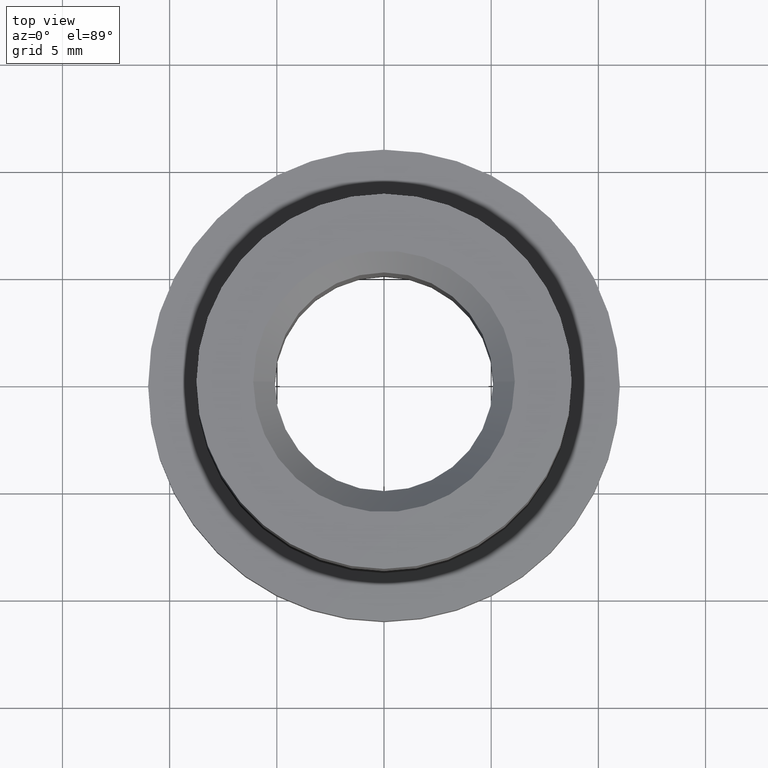
[diagram: clean part render]
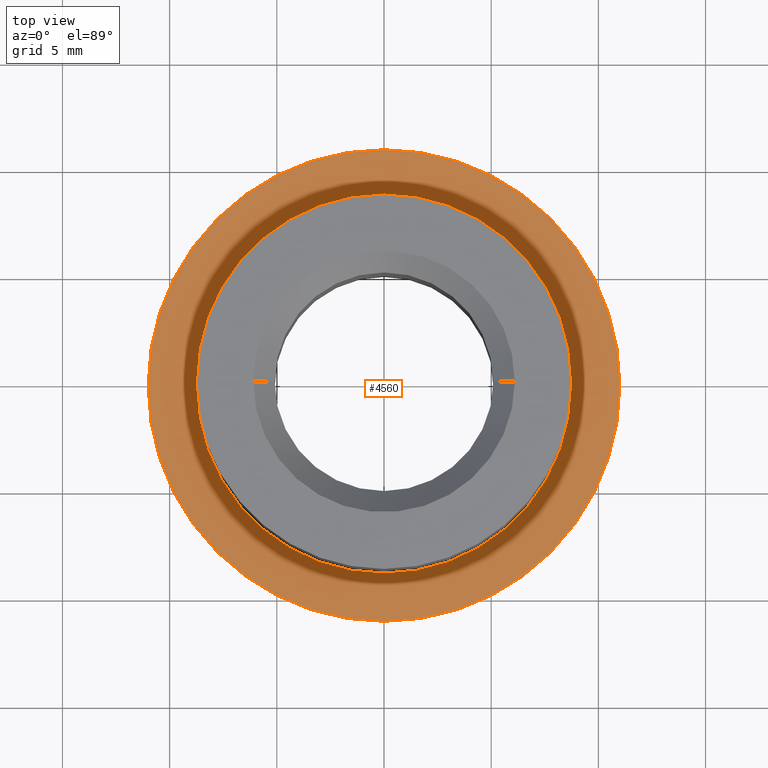
[diagram: same view with one face highlighted and labeled with its STEP entity id]
A machine part, top view. The second image highlights one B-rep face of the part: STEP entity #4560.
In plain terms, the highlighted planar face has unit normal (0, 0, -1).
Its self-contained STEP definition (entity closure, byte-faithful):
#906 = DIRECTION ( 'NONE',  ( 0.000000000000000000, 0.000000000000000000, -1.000000000000000000 ) ) ;
#979 = VERTEX_POINT ( 'NONE', #8013 ) ;
#1074 = DIRECTION ( 'NONE',  ( -0.000000000000000000, -0.000000000000000000, 1.000000000000000000 ) ) ;
#1916 = DIRECTION ( 'NONE',  ( -0.000000000000000000, -0.000000000000000000, 1.000000000000000000 ) ) ;
#2259 = CARTESIAN_POINT ( 'NONE',  ( -8.750000000000000000, 1.071565949253934124E-15, -4.000000000000000888 ) ) ;
#3133 = AXIS2_PLACEMENT_3D ( 'NONE', #7235, #1074, #12331 ) ;
#3796 = VERTEX_POINT ( 'NONE', #6628 ) ;
#3901 = EDGE_CURVE ( 'NONE', #979, #11785, #6807, .T. ) ;
#4403 = DIRECTION ( 'NONE',  ( -0.000000000000000000, -0.000000000000000000, 1.000000000000000000 ) ) ;
#4560 = ADVANCED_FACE ( 'NONE', ( #7610, #9060 ), #13271, .F. ) ;
#4762 = DIRECTION ( 'NONE',  ( 1.000000000000000000, 0.000000000000000000, 0.000000000000000000 ) ) ;
#5634 = ORIENTED_EDGE ( 'NONE', *, *, #10317, .F. ) ;
#5882 = CIRCLE ( 'NONE', #10283, 8.750000000000000000 ) ;
#5951 = CARTESIAN_POINT ( 'NONE',  ( 0.000000000000000000, 0.000000000000000000, -4.000000000000000888 ) ) ;
#6085 = DIRECTION ( 'NONE',  ( -1.000000000000000000, 0.000000000000000000, -0.000000000000000000 ) ) ;
#6100 = VERTEX_POINT ( 'NONE', #2259 ) ;
#6415 = CARTESIAN_POINT ( 'NONE',  ( 0.000000000000000000, 0.000000000000000000, -4.000000000000000888 ) ) ;
#6628 = CARTESIAN_POINT ( 'NONE',  ( 8.750000000000000000, 0.000000000000000000, -4.000000000000000888 ) ) ;
#6729 = CIRCLE ( 'NONE', #13180, 8.750000000000000000 ) ;
#6744 = ORIENTED_EDGE ( 'NONE', *, *, #8864, .T. ) ;
#6807 = CIRCLE ( 'NONE', #9390, 11.00000000000000000 ) ;
#7070 = CARTESIAN_POINT ( 'NONE',  ( 0.000000000000000000, 8.750000000000000000, -4.000000000000000888 ) ) ;
#7235 = CARTESIAN_POINT ( 'NONE',  ( 0.000000000000000000, 0.000000000000000000, -4.000000000000000888 ) ) ;
#7610 = FACE_BOUND ( 'NONE', #8017, .T. ) ;
#8013 = CARTESIAN_POINT ( 'NONE',  ( 11.00000000000000000, 0.000000000000000000, -4.000000000000000888 ) ) ;
#8017 = EDGE_LOOP ( 'NONE', ( #12421, #5634 ) ) ;
#8087 = CARTESIAN_POINT ( 'NONE',  ( -11.00000000000000000, 1.347111479062088405E-15, -4.000000000000000888 ) ) ;
#8509 = DIRECTION ( 'NONE',  ( 1.000000000000000000, 0.000000000000000000, 0.000000000000000000 ) ) ;
#8780 = DIRECTION ( 'NONE',  ( -0.000000000000000000, -0.000000000000000000, 1.000000000000000000 ) ) ;
#8864 = EDGE_CURVE ( 'NONE', #11785, #979, #9627, .T. ) ;
#9060 = FACE_OUTER_BOUND ( 'NONE', #10439, .T. ) ;
#9390 = AXIS2_PLACEMENT_3D ( 'NONE', #10895, #8780, #4762 ) ;
#9557 = AXIS2_PLACEMENT_3D ( 'NONE', #7070, #906, #6085 ) ;
#9586 = ORIENTED_EDGE ( 'NONE', *, *, #3901, .T. ) ;
#9627 = CIRCLE ( 'NONE', #3133, 11.00000000000000000 ) ;
#10283 = AXIS2_PLACEMENT_3D ( 'NONE', #6415, #4403, #8509 ) ;
#10317 = EDGE_CURVE ( 'NONE', #6100, #3796, #6729, .T. ) ;
#10439 = EDGE_LOOP ( 'NONE', ( #9586, #6744 ) ) ;
#10895 = CARTESIAN_POINT ( 'NONE',  ( 0.000000000000000000, 0.000000000000000000, -4.000000000000000888 ) ) ;
#11785 = VERTEX_POINT ( 'NONE', #8087 ) ;
#12252 = DIRECTION ( 'NONE',  ( 1.000000000000000000, 0.000000000000000000, 0.000000000000000000 ) ) ;
#12331 = DIRECTION ( 'NONE',  ( 1.000000000000000000, 0.000000000000000000, 0.000000000000000000 ) ) ;
#12421 = ORIENTED_EDGE ( 'NONE', *, *, #13094, .F. ) ;
#13094 = EDGE_CURVE ( 'NONE', #3796, #6100, #5882, .T. ) ;
#13180 = AXIS2_PLACEMENT_3D ( 'NONE', #5951, #1916, #12252 ) ;
#13271 = PLANE ( 'NONE',  #9557 ) ;